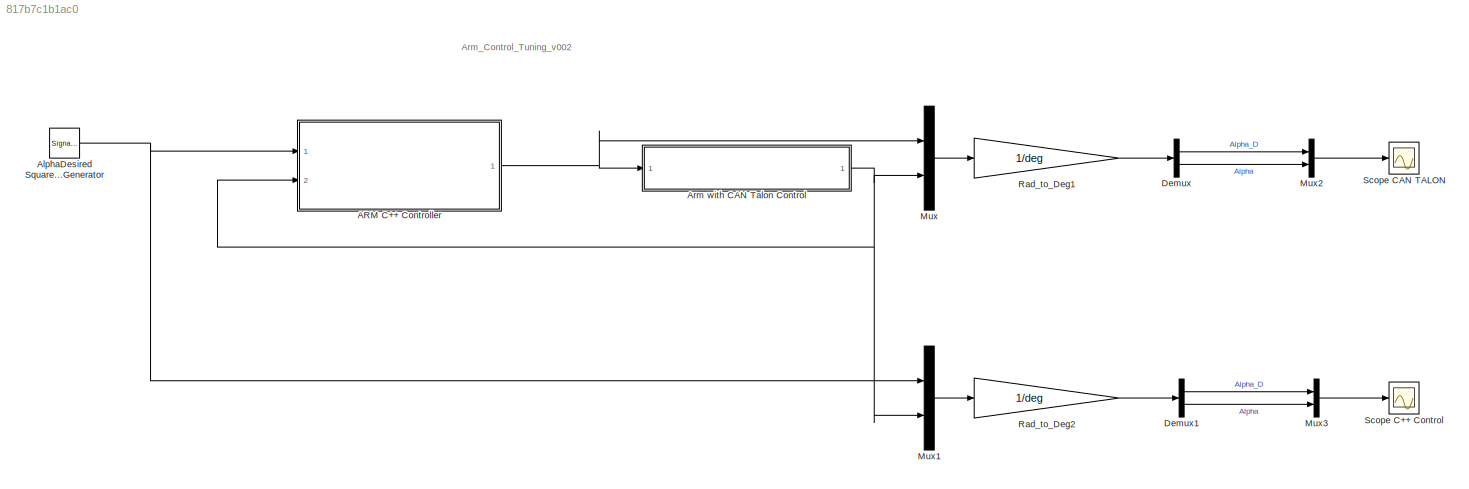
MODEL slx_817b7c1b1ac0
KIND model
CONFIG AbsTol = auto
CONFIG EnableMultiTasking = off
CONFIG FixedStep = 0.02
CONFIG InitFcn = deg=pi/180;\n
CONFIG MaxStep = 0.01
CONFIG MinStep = auto
CONFIG RelTol = 1e-3
CONFIG SampleTimeConstraint = Unconstrained
CONFIG Solver = FixedStepAuto
CONFIG SolverName = FixedStepAuto
CONFIG StartTime = 0.0
CONFIG StopTime = 30.0
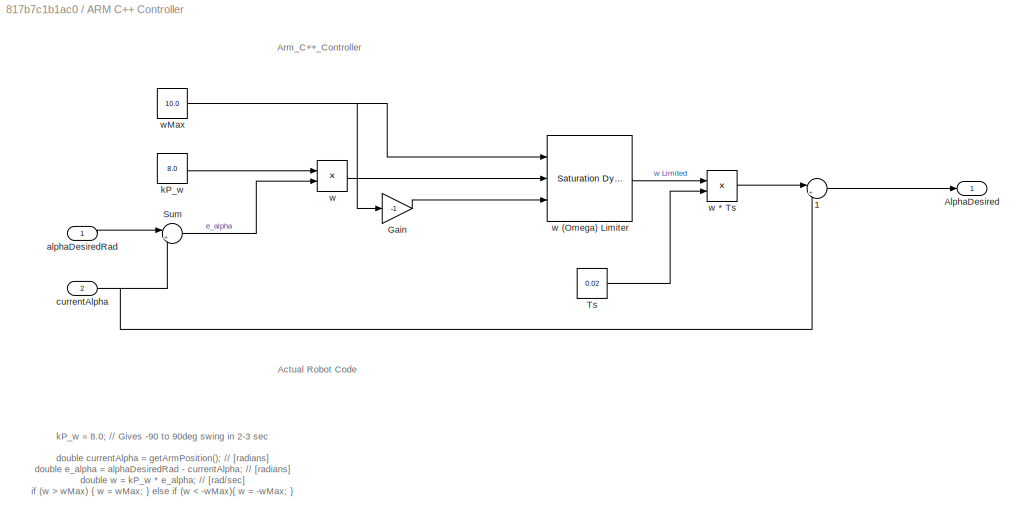
BLOCK [SubSystem] ARM C++ Controller
  Ports = [2, 1]
  RequestExecContextInheritance = off
  Variant = off
BLOCK [Sum] ARM C++ Controller/1
  IconShape = round
  InputSameDT = off
  Inputs = |++
  OutDataTypeStr = Inherit: Inherit via internal rule
  Ports = [2, 1]
  SaturateOnIntegerOverflow = off
BLOCK [Outport] ARM C++ Controller/AlphaDesired
  IconDisplay = Port number
BLOCK [Gain] ARM C++ Controller/Gain
  Gain = -1
  OutDataTypeStr = Inherit: Inherit via internal rule
  ParamDataTypeStr = Inherit: Inherit via internal rule
  SaturateOnIntegerOverflow = off
BLOCK [Sum] ARM C++ Controller/Sum
  IconShape = round
  InputSameDT = off
  Inputs = |+-
  OutDataTypeStr = Inherit: Inherit via internal rule
  Ports = [2, 1]
  SaturateOnIntegerOverflow = off
BLOCK [Constant] ARM C++ Controller/Ts
  Value = 0.02
BLOCK [Inport] ARM C++ Controller/alphaDesiredRad
  IconDisplay = Port number
BLOCK [Inport] ARM C++ Controller/currentAlpha
  IconDisplay = Port number
  Port = 2
BLOCK [Constant] ARM C++ Controller/kP_w 
  Value = 8.0
BLOCK [Product] ARM C++ Controller/w
  InputSameDT = off
  OutDataTypeStr = Inherit: Inherit via internal rule
  Ports = [2, 1]
  RndMeth = Floor
  SaturateOnIntegerOverflow = off
BLOCK [Reference] ARM C++ Controller/w (Omega) Limiter  REF=simulink/Discontinuities/Saturation
Dynamic
  Ports = [3, 1]
  SourceBlock = simulink/Discontinuities/Saturation\nDynamic
  SourceProductBaseCode = SL
  SourceProductName = Simulink
  SourceType = Saturation Dynamic
BLOCK [Product] ARM C++ Controller/w * Ts
  InputSameDT = off
  OutDataTypeStr = Inherit: Inherit via internal rule
  Ports = [2, 1]
  RndMeth = Floor
  SaturateOnIntegerOverflow = off
BLOCK [Constant] ARM C++ Controller/wMax 
  Value = 10.0
BLOCK [SignalGenerator] AlphaDesired Square Wave Generator
  Amplitude = 90*deg
  Frequency = 0.1
  Ports = [0, 1]
  WaveForm = square
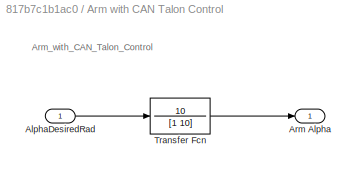
BLOCK [SubSystem] Arm with CAN Talon Control 
  Ports = [1, 1]
  RequestExecContextInheritance = off
  Variant = off
BLOCK [Inport] Arm with CAN Talon Control /AlphaDesiredRad
  IconDisplay = Port number
BLOCK [Outport] Arm with CAN Talon Control /Arm Alpha
  IconDisplay = Port number
BLOCK [TransferFcn] Arm with CAN Talon Control /Transfer Fcn
  Denominator = [1 10]
  Numerator = 10
BLOCK [Demux] Demux
  DisplayOption = bar
  Outputs = 2
  Ports = [1, 2]
BLOCK [Demux] Demux1
  DisplayOption = bar
  Outputs = 2
  Ports = [1, 2]
BLOCK [Mux] Mux
  DisplayOption = bar
  Inputs = 2
  Ports = [2, 1]
BLOCK [Mux] Mux1
  DisplayOption = bar
  Inputs = 2
  Ports = [2, 1]
BLOCK [Mux] Mux2
  DisplayOption = bar
  Inputs = 2
  Ports = [2, 1]
BLOCK [Mux] Mux3
  DisplayOption = bar
  Inputs = 2
  Ports = [2, 1]
BLOCK [Gain] Rad_to_Deg1
  Gain = 1/deg
  OutDataTypeStr = Inherit: Inherit via internal rule
  ParamDataTypeStr = Inherit: Inherit via internal rule
  SaturateOnIntegerOverflow = off
BLOCK [Gain] Rad_to_Deg2
  Gain = 1/deg
  OutDataTypeStr = Inherit: Inherit via internal rule
  ParamDataTypeStr = Inherit: Inherit via internal rule
  SaturateOnIntegerOverflow = off
BLOCK [Scope] Scope C++ Control
  NumInputPorts = 1
  Ports = [1]
  ScopeSpecificationString = Simulink.scopes.TimeScopeBlockCfg('CurrentConfiguration', extmgr.ConfigurationSet(extmgr.Configuration('Core','General UI',true,'FigureColor',[0.247058823529412 0.247058823529412 0.247058823529412]),extmgr.Configuration('Core','Source UI',true),extmgr.Configuration('Sources','WiredSimulink',true,'DataLoggingVariableName','ScopeData1'),extmgr.Configuration('Visuals','Time Domain',true,'SerializedDi...<+1806ch>
BLOCK [Scope] Scope CAN TALON
  NumInputPorts = 1
  Ports = [1]
  ScopeSpecificationString = Simulink.scopes.TimeScopeBlockCfg('CurrentConfiguration', extmgr.ConfigurationSet(extmgr.Configuration('Core','General UI',true),extmgr.Configuration('Core','Source UI',true),extmgr.Configuration('Sources','WiredSimulink',true),extmgr.Configuration('Visuals','Time Domain',true,'SerializedDisplays',{struct('MinYLimReal','-112.46381','MaxYLimReal','112.43615','YLabelReal','','MinYLimMag',' 0.00000',...<+1670ch>
ANNOTATION (root): Arm_Control_Tuning_v002
ANNOTATION ARM C++ Controller: Actual Robot Code
ANNOTATION ARM C++ Controller: Arm_C++_Controller
ANNOTATION ARM C++ Controller: kP_w = 8.0; // Gives -90 to 90deg swing in 2-3 sec double currentAlpha = getArmPosition(); // [radians] double e_alpha = alphaDesiredRad - currentAlpha; // [radians] double w = kP_w * e_alpha; // [rad/sec] if (w > wMax) { w = wMax; } else if (w < -wMax){ w = -wMax; } double currentFPGA = m_timer.GetFPGATimestamp(); double elapsedTime = currentFPGA - lastFPGATime; lastFPGATime = currentFPGA; double...<+160ch>
ANNOTATION Arm with CAN Talon Control : Arm_with_CAN_Talon_Control
LINE ARM C++ Controller/1:1 -> ARM C++ Controller/AlphaDesired:1
LINE ARM C++ Controller/Gain:1 -> ARM C++ Controller/w (Omega) Limiter:3
LINE ARM C++ Controller/Sum:1 -> ARM C++ Controller/w:2
LINE ARM C++ Controller/Ts:1 -> ARM C++ Controller/w * Ts:2
LINE ARM C++ Controller/alphaDesiredRad:1 -> ARM C++ Controller/Sum:1
NET ARM C++ Controller/currentAlpha:1 -> ARM C++ Controller/1:2, ARM C++ Controller/Sum:2
LINE ARM C++ Controller/kP_w :1 -> ARM C++ Controller/w:1
LINE ARM C++ Controller/w (Omega) Limiter:1 -> ARM C++ Controller/w * Ts:1
LINE ARM C++ Controller/w * Ts:1 -> ARM C++ Controller/1:1
LINE ARM C++ Controller/w:1 -> ARM C++ Controller/w (Omega) Limiter:2
NET ARM C++ Controller/wMax :1 -> ARM C++ Controller/Gain:1, ARM C++ Controller/w (Omega) Limiter:1
NET ARM C++ Controller:1 -> Arm with CAN Talon Control :1, Mux:1
NET AlphaDesired Square Wave Generator:1 -> ARM C++ Controller:1, Mux1:1
LINE Arm with CAN Talon Control /AlphaDesiredRad:1 -> Arm with CAN Talon Control /Transfer Fcn:1
LINE Arm with CAN Talon Control /Transfer Fcn:1 -> Arm with CAN Talon Control /Arm Alpha:1
NET Arm with CAN Talon Control :1 -> ARM C++ Controller:2, Mux1:2, Mux:2
LINE Demux1:1 -> Mux3:1
LINE Demux1:2 -> Mux3:2
LINE Demux:1 -> Mux2:1
LINE Demux:2 -> Mux2:2
LINE Mux1:1 -> Rad_to_Deg2:1
LINE Mux2:1 -> Scope CAN TALON:1
LINE Mux3:1 -> Scope C++ Control:1
LINE Mux:1 -> Rad_to_Deg1:1
LINE Rad_to_Deg1:1 -> Demux:1
LINE Rad_to_Deg2:1 -> Demux1:1
note: NET lines group one-source signal fan-out (src -> all destinations, sorted); 1:1 wires keep LINE
